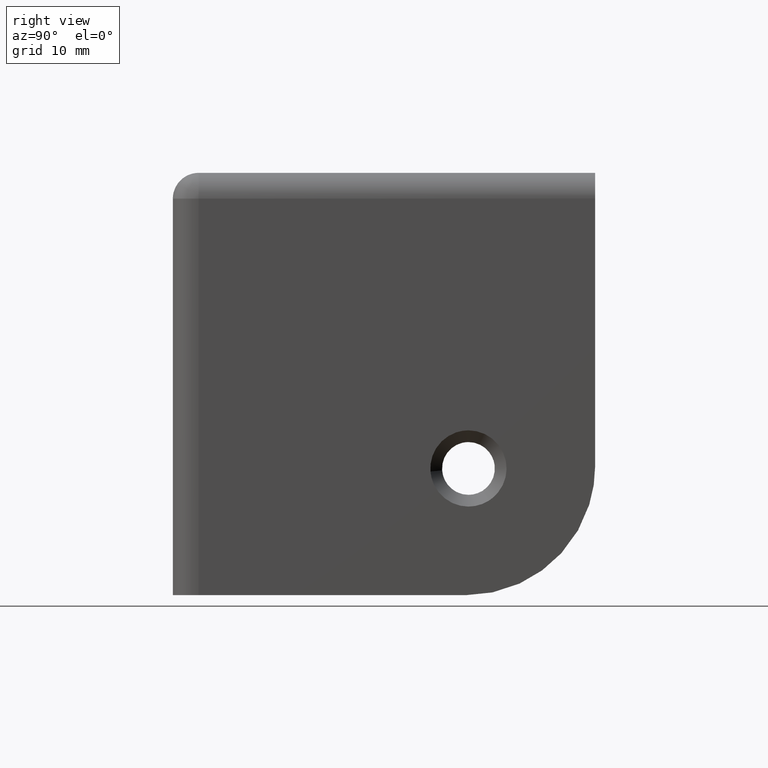
[diagram: clean part render]
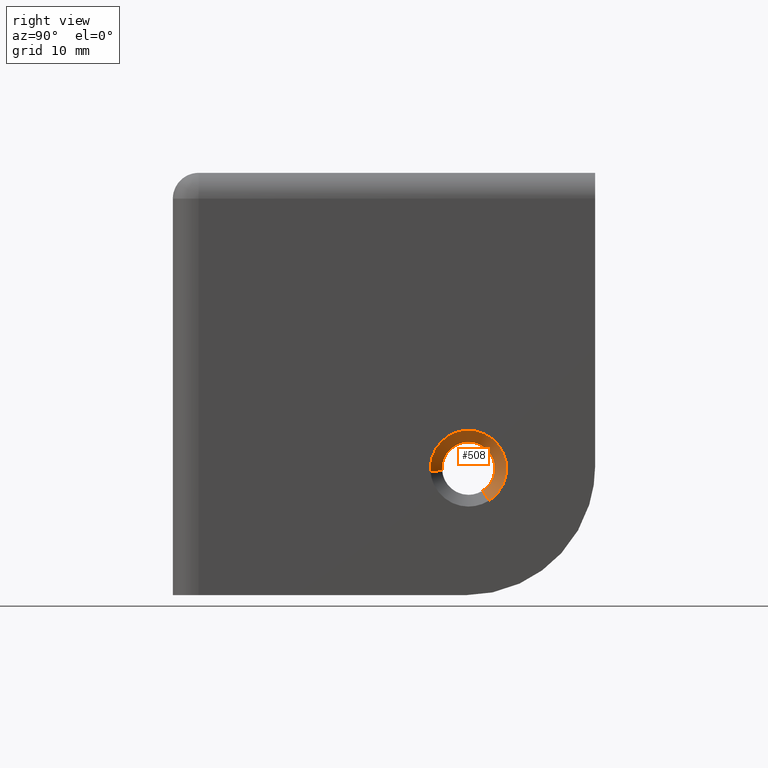
[diagram: same view with one face highlighted and labeled with its STEP entity id]
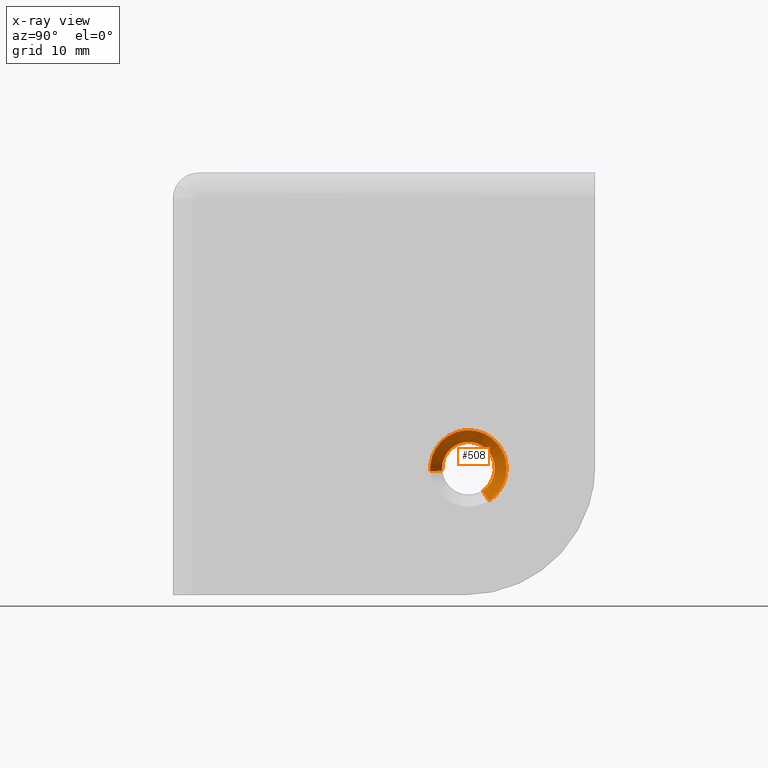
[diagram: x-ray of the same camera — body ghosted, the highlighted face saturated]
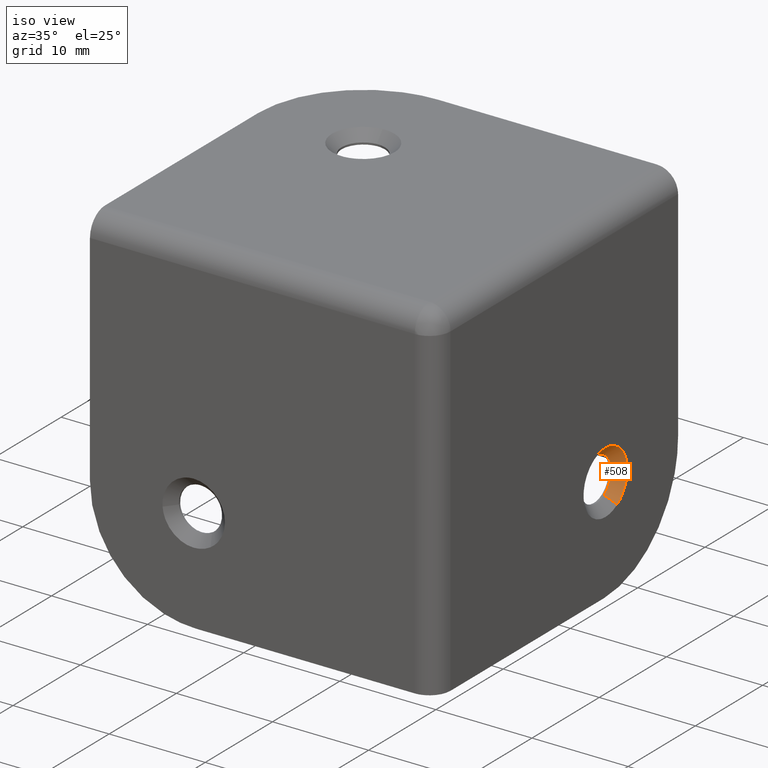
[diagram: same view with one face highlighted and labeled with its STEP entity id]
A machine part, right view. The second image highlights one B-rep face of the part: STEP entity #508.
The next image is the same camera in x-ray: the body ghosted, the highlighted face saturated — about 0% of this face is hidden behind the body in this view.
A second angle (iso view) of the same face is appended — the face is thin or edge-on in the first view.
In plain terms, the highlighted face is a freeform B-spline surface patch.
Its self-contained STEP definition (entity closure, byte-faithful):
#372=CARTESIAN_POINT('',(-1.025000000000000,26.396718015417800,8.924235891276712));
#373=CARTESIAN_POINT('',(-1.025000000000000,27.522956559882548,9.642764382972958));
#374=CARTESIAN_POINT('',(-1.025000000000000,27.418141067556210,10.974571487994460));
#375=CARTESIAN_POINT('',(-1.025000000000000,27.243569579561743,13.192712555550662));
#376=CARTESIAN_POINT('',(-1.025000000000000,25.025428512005540,13.018141067556209));
#377=CARTESIAN_POINT('',(-1.025000000000000,22.807287444449337,12.843569579561752));
#378=CARTESIAN_POINT('',(-1.025000000000000,22.981858932443789,10.625428512005550));
#379=CARTESIAN_POINT('',(0.025625000000004,26.961797505282220,8.038516939938553));
#380=CARTESIAN_POINT('',(0.025625000000004,28.619835766950686,9.096328126730692));
#381=CARTESIAN_POINT('',(0.025625000000004,28.465527341309571,11.057002575443530));
#382=CARTESIAN_POINT('',(0.025625000000004,28.208524765866049,14.322529916753105));
#383=CARTESIAN_POINT('',(0.025625000000004,24.942997424556470,14.065527341309579));
#384=CARTESIAN_POINT('',(0.025625000000004,21.677470083246906,13.808524765866055));
#385=CARTESIAN_POINT('',(0.025625000000004,21.934472658690421,10.542997424556480));
#393=(BOUNDED_SURFACE()B_SPLINE_SURFACE(2,1,((#372,#379),(#373,#380),(#374,#381),(#375,#382),(#376,#383),(#377,#384),(#378,#385)),.UNSPECIFIED.,.F.,.F.,.U.)B_SPLINE_SURFACE_WITH_KNOTS((3,2,2,3),(2,2),(0.0,3.690518576675565,9.117751777669044,14.544984978662519),(0.0,1.0),.UNSPECIFIED.)GEOMETRIC_REPRESENTATION_ITEM()RATIONAL_B_SPLINE_SURFACE(((0.872532871172386,0.872532871172386),(0.800832611206852,0.800832611206852),(1.0,1.0),(0.707106781186548,0.707106781186548),(1.0,1.0),(0.707106781186548,0.707106781186548),(1.0,1.0)))REPRESENTATION_ITEM('')SURFACE());
#394=CARTESIAN_POINT('',(-1.0,27.434271434311562,11.065577028033950));
#395=VERTEX_POINT('',#394);
#396=CARTESIAN_POINT('',(-0.999999999995195,26.410164285333650,8.903159890100248));
#397=VERTEX_POINT('',#396);
#398=CARTESIAN_POINT('',(-1.0,27.434271434311565,11.065577028033951));
#399=CARTESIAN_POINT('',(-1.0,27.449999999999996,10.933254269273634));
#400=CARTESIAN_POINT('',(-1.0,27.449999999999999,10.800000000000001));
#401=CARTESIAN_POINT('',(-1.0,27.450000000000003,9.566564274085856));
#402=CARTESIAN_POINT('',(-0.999999999995195,26.410164285333657,8.903159890100248));
#410=(BOUNDED_CURVE()B_SPLINE_CURVE(2,(#398,#399,#400,#401,#402),.UNSPECIFIED.,.F.,.U.)B_SPLINE_CURVE_WITH_KNOTS((3,2,3),(0.229562473507136,0.250000000000000,0.407950112615156),.UNSPECIFIED.)CURVE()GEOMETRIC_REPRESENTATION_ITEM()RATIONAL_B_SPLINE_CURVE((0.956026754171209,0.976055948323679,1.0,0.814949932416799,0.863729296947268))REPRESENTATION_ITEM(''));
#411=EDGE_CURVE('',#395,#397,#410,.T.);
#412=ORIENTED_EDGE('',*,*,#411,.T.);
#413=CARTESIAN_POINT('',(3.235248E-012,26.948015078753819,8.060119841221102));
#414=VERTEX_POINT('',#413);
#415=CARTESIAN_POINT('',(-0.999999999995195,26.410164285333650,8.903159890100248));
#416=CARTESIAN_POINT('',(3.235248E-012,26.948015078753819,8.060119841221102));
#417=QUASI_UNIFORM_CURVE('',1,(#415,#416),.UNSPECIFIED.,.F.,.U.);
#418=EDGE_CURVE('',#397,#414,#417,.T.);
#419=ORIENTED_EDGE('',*,*,#418,.T.);
#420=CARTESIAN_POINT('',(4.032016E-015,25.199999999999999,14.050000000000001));
#421=VERTEX_POINT('',#420);
#422=CARTESIAN_POINT('',(4.032016E-015,25.199999999999999,14.050000000000001));
#423=CARTESIAN_POINT('',(4.032016E-015,28.450000000000003,14.050000000000001));
#424=CARTESIAN_POINT('',(4.032016E-015,28.449999999999999,10.800000000000001));
#425=CARTESIAN_POINT('',(4.032016E-015,28.449999999999999,9.018370618032277));
#426=CARTESIAN_POINT('',(3.235248E-012,26.948015078753819,8.060119841221102));
#434=(BOUNDED_CURVE()B_SPLINE_CURVE(2,(#422,#423,#424,#425,#426),.UNSPECIFIED.,.F.,.U.)B_SPLINE_CURVE_WITH_KNOTS((3,2,3),(0.0,0.250000000000000,0.407950112621783),.UNSPECIFIED.)CURVE()GEOMETRIC_REPRESENTATION_ITEM()RATIONAL_B_SPLINE_CURVE((1.0,0.707106781186547,1.0,0.814949932409034,0.863729296951362))REPRESENTATION_ITEM(''));
#435=EDGE_CURVE('',#421,#414,#434,.T.);
#436=ORIENTED_EDGE('',*,*,#435,.F.);
#437=CARTESIAN_POINT('',(9.120925E-012,21.960018665363730,10.545007938814059));
#438=VERTEX_POINT('',#437);
#439=CARTESIAN_POINT('',(9.120925E-012,21.960018665363730,10.545007938814068));
#440=CARTESIAN_POINT('',(4.032016E-015,21.950000000000003,10.672307152155025));
#441=CARTESIAN_POINT('',(4.032016E-015,21.949999999999999,10.800000000000001));
#442=CARTESIAN_POINT('',(4.032016E-015,21.950000000000003,14.050000000000001));
#443=CARTESIAN_POINT('',(4.032016E-015,25.199999999999999,14.050000000000001));
#451=(BOUNDED_CURVE()B_SPLINE_CURVE(2,(#439,#440,#441,#442,#443),.UNSPECIFIED.,.F.,.U.)B_SPLINE_CURVE_WITH_KNOTS((3,2,3),(0.736331300625389,0.750000000000000,1.0),.UNSPECIFIED.)CURVE()GEOMETRIC_REPRESENTATION_ITEM()RATIONAL_B_SPLINE_CURVE((0.969723356156418,0.983986122572707,1.0,0.707106781186547,1.0))REPRESENTATION_ITEM(''));
#452=EDGE_CURVE('',#438,#421,#451,.T.);
#453=ORIENTED_EDGE('',*,*,#452,.F.);
#454=CARTESIAN_POINT('',(-0.999999999993507,22.956935999097912,10.623467034562060));
#455=VERTEX_POINT('',#454);
#456=CARTESIAN_POINT('',(-0.999999999993507,22.956935999097912,10.623467034562060));
#457=CARTESIAN_POINT('',(9.120925E-012,21.960018665363730,10.545007938814059));
#458=QUASI_UNIFORM_CURVE('',1,(#456,#457),.UNSPECIFIED.,.F.,.U.);
#459=EDGE_CURVE('',#455,#438,#458,.T.);
#460=ORIENTED_EDGE('',*,*,#459,.F.);
#461=CARTESIAN_POINT('',(-1.0,22.954196704006030,10.662640778603659));
#462=VERTEX_POINT('',#461);
#463=CARTESIAN_POINT('',(-0.999999999993507,22.956935999097915,10.623467034562060));
#464=CARTESIAN_POINT('',(-1.0,22.955395419838975,10.643041950110172));
#465=CARTESIAN_POINT('',(-1.0,22.954196704006026,10.662640778603656));
#473=(BOUNDED_CURVE()B_SPLINE_CURVE(2,(#463,#464,#465),.UNSPECIFIED.,.F.,.U.)B_SPLINE_CURVE_WITH_KNOTS((3,3),(0.736331300625159,0.739332961098279),.UNSPECIFIED.)CURVE()GEOMETRIC_REPRESENTATION_ITEM()RATIONAL_B_SPLINE_CURVE((0.969723356155937,0.972855474363801,0.976072039222059))REPRESENTATION_ITEM(''));
#474=EDGE_CURVE('',#455,#462,#473,.T.);
#475=ORIENTED_EDGE('',*,*,#474,.T.);
#476=CARTESIAN_POINT('',(-1.0,25.199999999999999,13.050000000000001));
#477=VERTEX_POINT('',#476);
#478=CARTESIAN_POINT('',(-1.0,22.954196704006034,10.662640778603665));
#479=CARTESIAN_POINT('',(-1.0,22.950000000000006,10.731256275114390));
#480=CARTESIAN_POINT('',(-1.0,22.949999999999999,10.800000000000001));
#481=CARTESIAN_POINT('',(-1.0,22.950000000000010,13.050000000000001));
#482=CARTESIAN_POINT('',(-1.0,25.199999999999999,13.050000000000001));
#490=(BOUNDED_CURVE()B_SPLINE_CURVE(2,(#478,#479,#480,#481,#482),.UNSPECIFIED.,.F.,.U.)B_SPLINE_CURVE_WITH_KNOTS((3,2,3),(0.739332961098279,0.750000000000000,1.0),.UNSPECIFIED.)CURVE()GEOMETRIC_REPRESENTATION_ITEM()RATIONAL_B_SPLINE_CURVE((0.976072039222057,0.987502786563466,1.0,0.707106781186547,1.0))REPRESENTATION_ITEM(''));
#491=EDGE_CURVE('',#462,#477,#490,.T.);
#492=ORIENTED_EDGE('',*,*,#491,.T.);
#493=CARTESIAN_POINT('',(-1.0,25.199999999999999,13.050000000000001));
#494=CARTESIAN_POINT('',(-1.0,27.198392683289256,13.050000000000001));
#495=CARTESIAN_POINT('',(-1.0,27.434271434311562,11.065577028033955));
#503=(BOUNDED_CURVE()B_SPLINE_CURVE(2,(#493,#494,#495),.UNSPECIFIED.,.F.,.U.)B_SPLINE_CURVE_WITH_KNOTS((3,3),(0.0,0.229562473507136),.UNSPECIFIED.)CURVE()GEOMETRIC_REPRESENTATION_ITEM()RATIONAL_B_SPLINE_CURVE((1.0,0.731050832862868,0.956026754171209))REPRESENTATION_ITEM(''));
#504=EDGE_CURVE('',#477,#395,#503,.T.);
#505=ORIENTED_EDGE('',*,*,#504,.T.);
#506=EDGE_LOOP('',(#412,#419,#436,#453,#460,#475,#492,#505));
#507=FACE_OUTER_BOUND('',#506,.T.);
#508=ADVANCED_FACE('',(#507),#393,.F.);